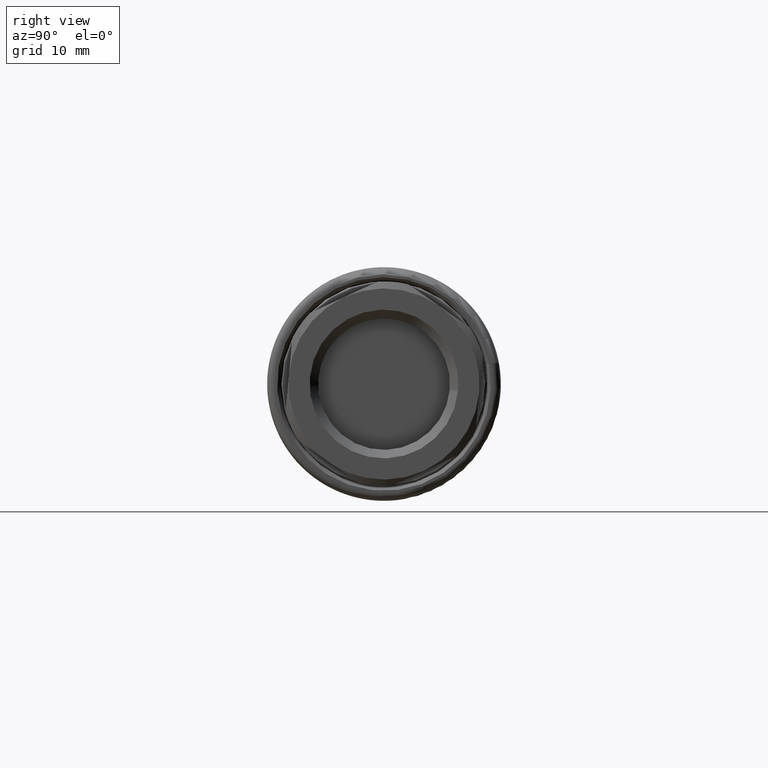
[diagram: clean part render]
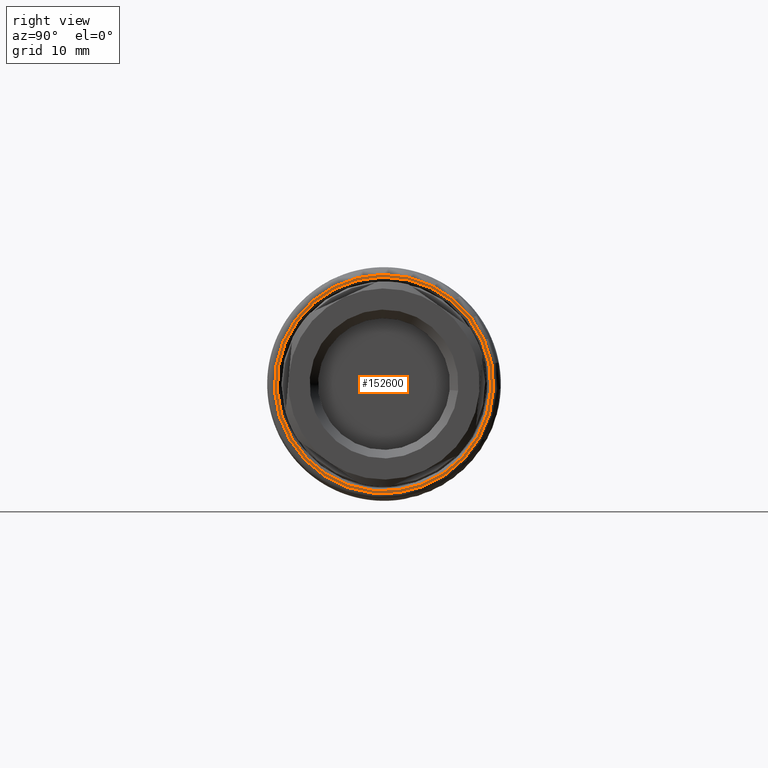
[diagram: same view with one face highlighted and labeled with its STEP entity id]
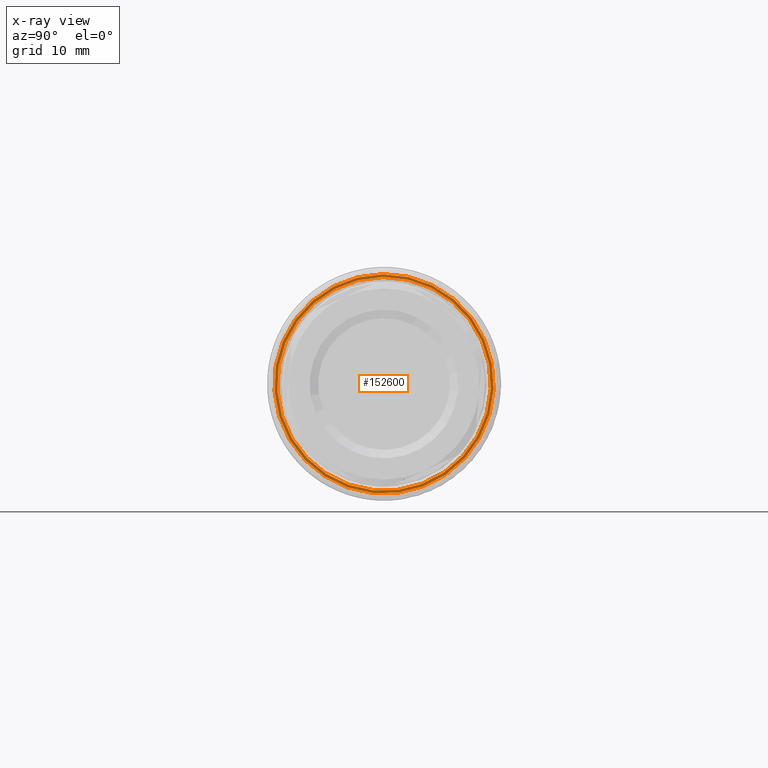
[diagram: x-ray of the same camera — body ghosted, the highlighted face saturated]
A machine part, right view. The second image highlights one B-rep face of the part: STEP entity #152600.
The next image is the same camera in x-ray: the body ghosted, the highlighted face saturated — about 0% of this face is hidden behind the body in this view.
In plain terms, the highlighted planar face has unit normal (1, 0, 0).
Its self-contained STEP definition (entity closure, byte-faithful):
#152558=CARTESIAN_POINT('',(52.800000000000004,14.840102982842742,2.789505952426353));
#152559=VERTEX_POINT('',#152558);
#152560=CARTESIAN_POINT('',(52.800000000000004,0.0,0.0));
#152561=DIRECTION('',(1.0,0.0,0.0));
#152562=DIRECTION('',(0.0,-0.982788277009453,-0.184735493538169));
#152563=AXIS2_PLACEMENT_3D('',#152560,#152561,#152562);
#152564=CIRCLE('',#152563,15.100000000000003);
#152565=EDGE_CURVE('',#152559,#152559,#152564,.T.);
#152581=CARTESIAN_POINT('',(52.800000000000004,15.282357707496999,2.872636924518528));
#152582=DIRECTION('',(1.0,0.0,0.0));
#152583=DIRECTION('',(0.0,0.184735493538169,-0.982788277009453));
#152584=AXIS2_PLACEMENT_3D('',#152581,#152582,#152583);
#152585=PLANE('',#152584);
#152586=CARTESIAN_POINT('',(52.800000000000004,15.233218293646528,2.863400149841616));
#152587=VERTEX_POINT('',#152586);
#152588=CARTESIAN_POINT('',(52.800000000000004,0.0,0.0));
#152589=DIRECTION('',(-1.0,0.0,0.0));
#152590=DIRECTION('',(0.0,-0.982788277009453,-0.184735493538169));
#152591=AXIS2_PLACEMENT_3D('',#152588,#152589,#152590);
#152592=CIRCLE('',#152591,15.500000000000007);
#152593=EDGE_CURVE('',#152587,#152587,#152592,.T.);
#152594=ORIENTED_EDGE('',*,*,#152593,.F.);
#152595=EDGE_LOOP('',(#152594));
#152596=FACE_OUTER_BOUND('',#152595,.T.);
#152597=ORIENTED_EDGE('',*,*,#152565,.F.);
#152598=EDGE_LOOP('',(#152597));
#152599=FACE_BOUND('',#152598,.T.);
#152600=ADVANCED_FACE('',(#152596,#152599),#152585,.T.);